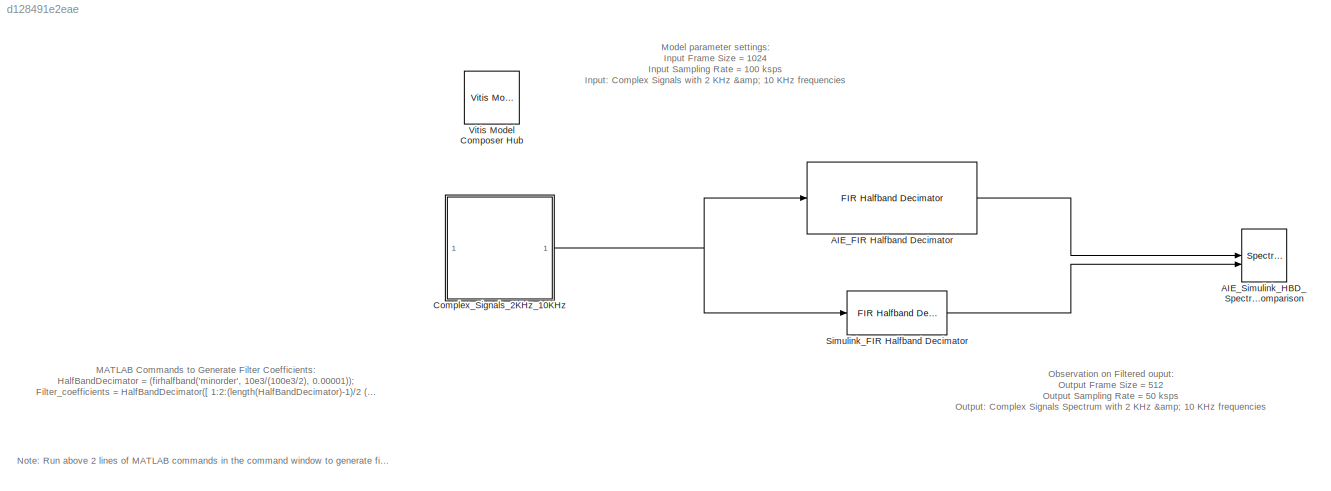
MODEL slx_d128491e2eae
KIND model
CONFIG AbsTol = auto
CONFIG EnableMultiTasking = off
CONFIG FixedStep = auto
CONFIG MaxStep = auto
CONFIG MinStep = auto
CONFIG RelTol = 1e-3
CONFIG SampleTimeConstraint = Unconstrained
CONFIG SolverName = VariableStepAuto
CONFIG StartTime = 0.0
CONFIG StopTime = 0.5
BLOCK [Reference] AIE_FIR Halfband Decimator  REF=aieDSP/FIR Halfband Decimator
  SourceBlock = aieDSP/FIR Halfband Decimator
  SourceType = FIR Halfband Decimator
BLOCK [SpectrumAnalyzer] AIE_Simulink_HBD_SpectrumComparison
  AllowFFTLengthLessThanSamplesPerUpdate = on
  AveragingMethod = Exponential
  ChannelNames = [""]
  DefaultConfigurationName = spbscopes.SpectrumAnalyzerBlockCfg
  NumInputPorts = 2
  ScopeSpecificationString = spbscopes.SpectrumAnalyzerBlockCfg('CurrentConfiguration', extmgr.ConfigurationSet(extmgr.Configuration('Core','General UI',true,'FigureColor',[0.16        0.16        0.16]),extmgr.Configuration('Visuals','Spectrum',true,'Title','','YLabel','','MinYLim','-48.3672','MaxYLim','38.5818','Legend',true,'AxesProperties',struct('XGrid',{'on','on'},'YGrid',{'on','on'},'ZGrid',{'on','on'},'Color',{[0 0 0]...<+2398ch>
  ShowLegend = on
  WasSavedAsWebScope = on
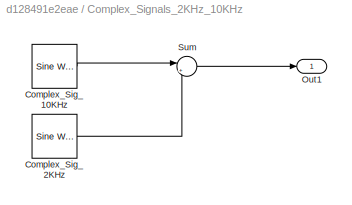
BLOCK [SubSystem] Complex_Signals_2KHz_10KHz
BLOCK [Reference] Complex_Signals_2KHz_10KHz/Complex_Sig_10KHz  REF=dspsrcs4/Sine Wave
  SourceBlock = dspsrcs4/Sine Wave
  SourceType = Sine Wave
BLOCK [Reference] Complex_Signals_2KHz_10KHz/Complex_Sig_2KHz  REF=dspsrcs4/Sine Wave
  SourceBlock = dspsrcs4/Sine Wave
  SourceType = Sine Wave
BLOCK [Outport] Complex_Signals_2KHz_10KHz/Out1
BLOCK [Sum] Complex_Signals_2KHz_10KHz/Sum
  Inputs = |++
BLOCK [Reference] Simulink_FIR Halfband Decimator  REF=dspmlti4/FIR Halfband
Decimator
  SourceBlock = dspmlti4/FIR Halfband\nDecimator
  SourceType = dsp.simulink.FIRHalfbandDecimator
BLOCK [Reference] Vitis Model Composer Hub  REF=vmcUtilities/Vitis Model Composer Hub
  SourceBlock = vmcUtilities/Vitis Model Composer Hub
  SourceType = VMC Hub
  Tag = genX
  UserDataPersistent = on
ANNOTATION (root): Note : Run above 2 lines of MATLAB commands in the command window to generate filter coefficients
ANNOTATION (root): MATLAB Commands to Generate Filter Coefficients: HalfBandDecimator = (firhalfband( 'minorder' , 10e3/(100e3/2), 0.00001)); Filter_coefficients = HalfBandDecimator([ 1:2:(length(HalfBandDecimator)-1)/2 (length(HalfBandDecimator)+1)/2]);
ANNOTATION (root): Model parameter settings: Input Frame Size = 1024 Input Sampling Rate = 100 ksps Input: Complex Signals with 2 KHz & 10 KHz frequencies
ANNOTATION (root): Observation on Filtered ouput: Output Frame Size = 512 Output Sampling Rate = 50 ksps Output: Complex Signals Spectrum with 2 KHz & 10 KHz frequencies
LINE AIE_FIR Halfband Decimator:1 -> AIE_Simulink_HBD_SpectrumComparison:1
LINE Complex_Signals_2KHz_10KHz/Complex_Sig_10KHz:1 -> Complex_Signals_2KHz_10KHz/Sum:1
LINE Complex_Signals_2KHz_10KHz/Complex_Sig_2KHz:1 -> Complex_Signals_2KHz_10KHz/Sum:2
LINE Complex_Signals_2KHz_10KHz/Sum:1 -> Complex_Signals_2KHz_10KHz/Out1:1
NET Complex_Signals_2KHz_10KHz:1 -> AIE_FIR Halfband Decimator:1, Simulink_FIR Halfband Decimator:1
LINE Simulink_FIR Halfband Decimator:1 -> AIE_Simulink_HBD_SpectrumComparison:2
note: NET lines group one-source signal fan-out (src -> all destinations, sorted); 1:1 wires keep LINE
